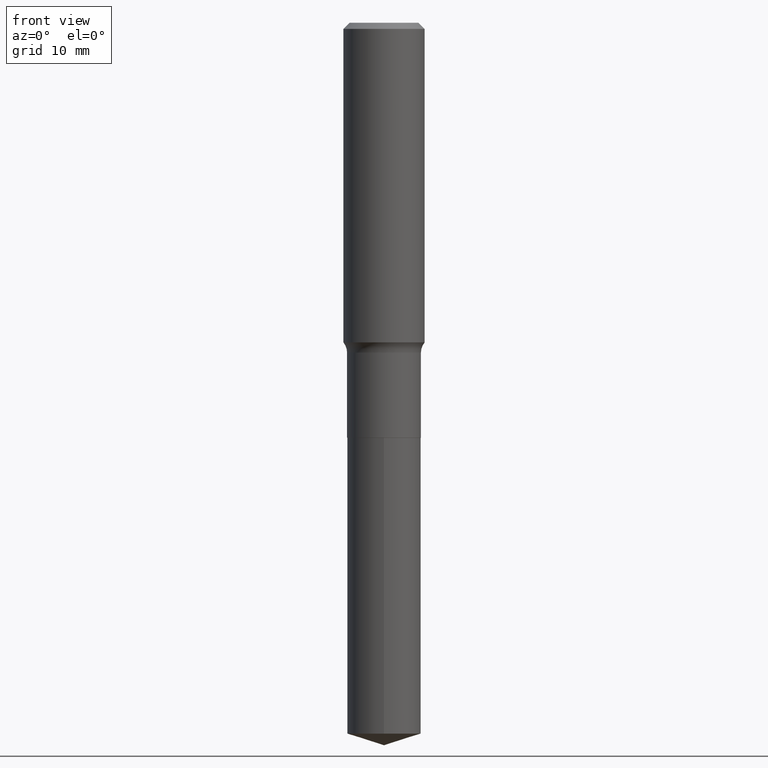
[diagram: clean part render]
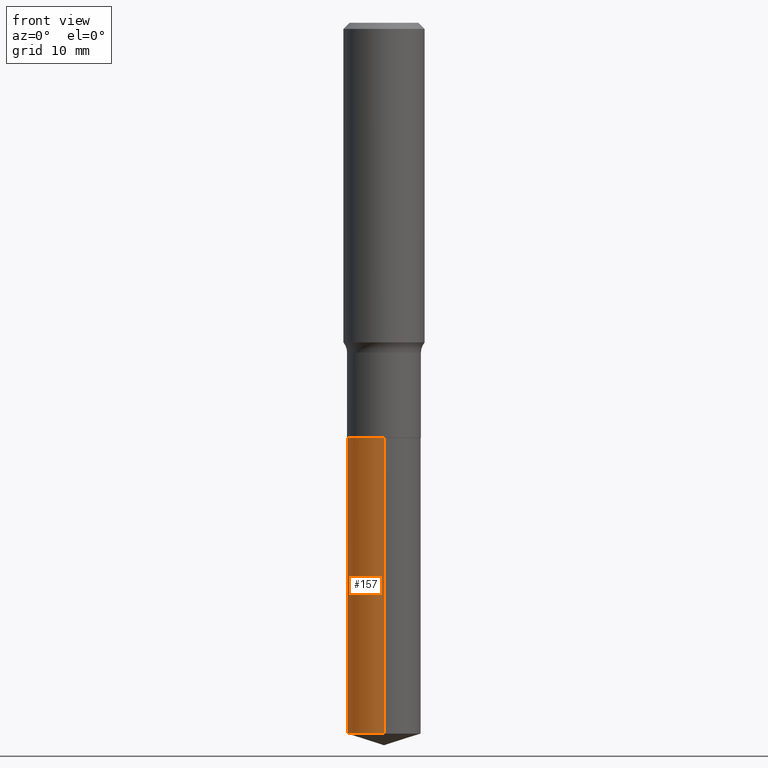
[diagram: same view with one face highlighted and labeled with its STEP entity id]
A machine part, front view. The second image highlights one B-rep face of the part: STEP entity #157.
In plain terms, the highlighted cylindrical surface (partial cylindrical patch) has radius 4.5504 mm, axis along (-0, 0, 1).
Its self-contained STEP definition (entity closure, byte-faithful):
#12 = VERTEX_POINT ( 'NONE', #396 ) ;
#13 = CARTESIAN_POINT ( 'NONE',  ( 1.272937311114268616E-15, 0.1791499999999929815, -2.011800000000000477 ) ) ;
#20 = EDGE_CURVE ( 'NONE', #284, #82, #401, .T. ) ;
#55 = EDGE_CURVE ( 'NONE', #82, #197, #324, .T. ) ;
#64 = AXIS2_PLACEMENT_3D ( 'NONE', #255, #248, #133 ) ;
#77 = DIRECTION ( 'NONE',  ( -2.445392753752402791E-29, 3.491590250255455996E-15, 1.000000000000000000 ) ) ;
#82 = VERTEX_POINT ( 'NONE', #135 ) ;
#88 = FACE_OUTER_BOUND ( 'NONE', #277, .T. ) ;
#107 = EDGE_CURVE ( 'NONE', #284, #12, #299, .T. ) ;
#115 = CYLINDRICAL_SURFACE ( 'NONE', #393, 0.1791500000000000314 ) ;
#122 = CARTESIAN_POINT ( 'NONE',  ( -1.250997763707445513E-15, -0.1791500000000070536, -2.011799999999999145 ) ) ;
#133 = DIRECTION ( 'NONE',  ( -6.982962677686265133E-15, -1.000000000000000000, 3.049788438363675772E-15 ) ) ;
#135 = CARTESIAN_POINT ( 'NONE',  ( 1.272937311114303917E-15, 0.1791499999999929815, -2.011800000000000477 ) ) ;
#138 = AXIS2_PLACEMENT_3D ( 'NONE', #209, #412, #166 ) ;
#140 = CARTESIAN_POINT ( 'NONE',  ( 1.272937311114304312E-15, 0.1791499999999880688, -3.447414221972331383 ) ) ;
#149 = CARTESIAN_POINT ( 'NONE',  ( 4.919794144283257255E-29, -7.024162157484639438E-15, -2.011800000000000033 ) ) ;
#157 = ADVANCED_FACE ( 'NONE', ( #88 ), #115, .T. ) ;
#159 = LINE ( 'NONE', #122, #283 ) ;
#166 = DIRECTION ( 'NONE',  ( -6.982962677686265133E-15, -1.000000000000000000, 3.049788438363675772E-15 ) ) ;
#167 = ORIENTED_EDGE ( 'NONE', *, *, #107, .T. ) ;
#173 = VECTOR ( 'NONE', #281, 39.37007874015748143 ) ;
#183 = ORIENTED_EDGE ( 'NONE', *, *, #20, .F. ) ;
#197 = VERTEX_POINT ( 'NONE', #354 ) ;
#209 = CARTESIAN_POINT ( 'NONE',  ( 4.919794144283257255E-29, -7.024162157484639438E-15, -2.011800000000000033 ) ) ;
#226 = DIRECTION ( 'NONE',  ( -2.445392753752402791E-29, 3.491590250255455602E-15, 1.000000000000000000 ) ) ;
#229 = ORIENTED_EDGE ( 'NONE', *, *, #388, .T. ) ;
#248 = DIRECTION ( 'NONE',  ( -2.445392753752402791E-29, 3.491590250255455996E-15, 1.000000000000000000 ) ) ;
#255 = CARTESIAN_POINT ( 'NONE',  ( 8.430434759878289213E-29, -1.203673877805130082E-14, -3.447414221972330495 ) ) ;
#277 = EDGE_LOOP ( 'NONE', ( #183, #167, #229, #309 ) ) ;
#281 = DIRECTION ( 'NONE',  ( -2.445392753752402791E-29, 3.491590250255455602E-15, 1.000000000000000000 ) ) ;
#283 = VECTOR ( 'NONE', #226, 39.37007874015748143 ) ;
#284 = VERTEX_POINT ( 'NONE', #140 ) ;
#299 = CIRCLE ( 'NONE', #64, 0.1791500000000000314 ) ;
#305 = DIRECTION ( 'NONE',  ( -6.982962677686265133E-15, -1.000000000000000000, 3.049788438363675772E-15 ) ) ;
#309 = ORIENTED_EDGE ( 'NONE', *, *, #55, .F. ) ;
#324 = CIRCLE ( 'NONE', #138, 0.1791500000000000314 ) ;
#354 = CARTESIAN_POINT ( 'NONE',  ( -1.250997763707445513E-15, -0.1791500000000070536, -2.011799999999999145 ) ) ;
#388 = EDGE_CURVE ( 'NONE', #12, #197, #159, .T. ) ;
#393 = AXIS2_PLACEMENT_3D ( 'NONE', #149, #77, #305 ) ;
#396 = CARTESIAN_POINT ( 'NONE',  ( -1.250997763707411000E-15, -0.1791500000000121329, -3.447414221972330051 ) ) ;
#401 = LINE ( 'NONE', #13, #173 ) ;
#412 = DIRECTION ( 'NONE',  ( -2.445392753752402791E-29, 3.491590250255455996E-15, 1.000000000000000000 ) ) ;